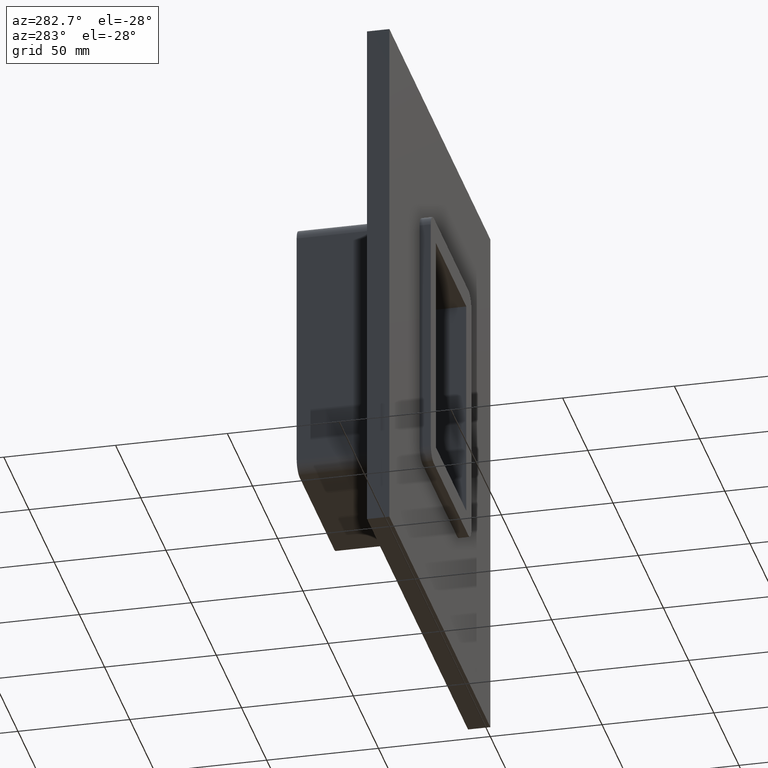
[diagram: clean part render]
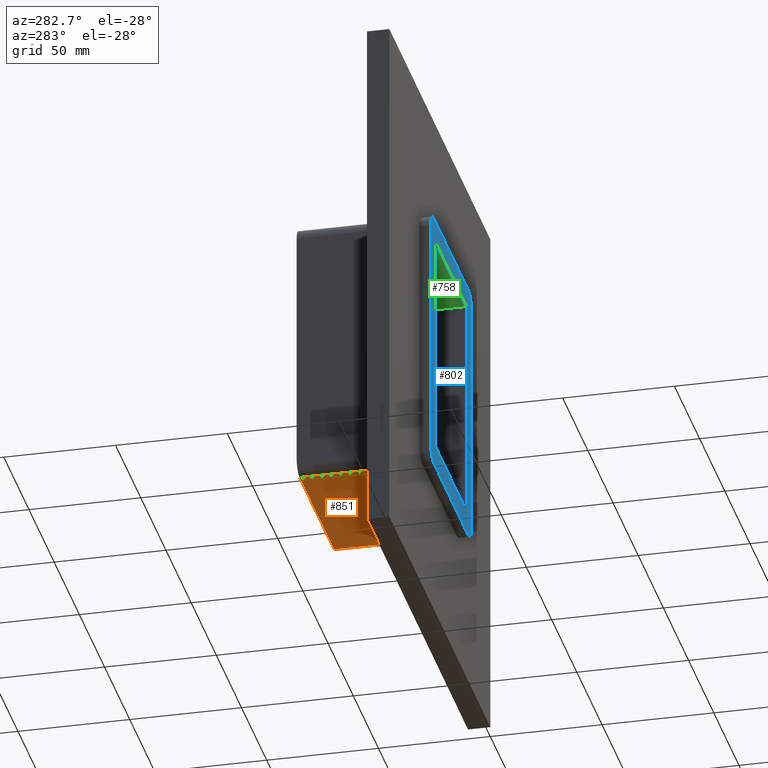
[diagram: same view with three faces highlighted in distinct colors, each labeled with its STEP entity id]
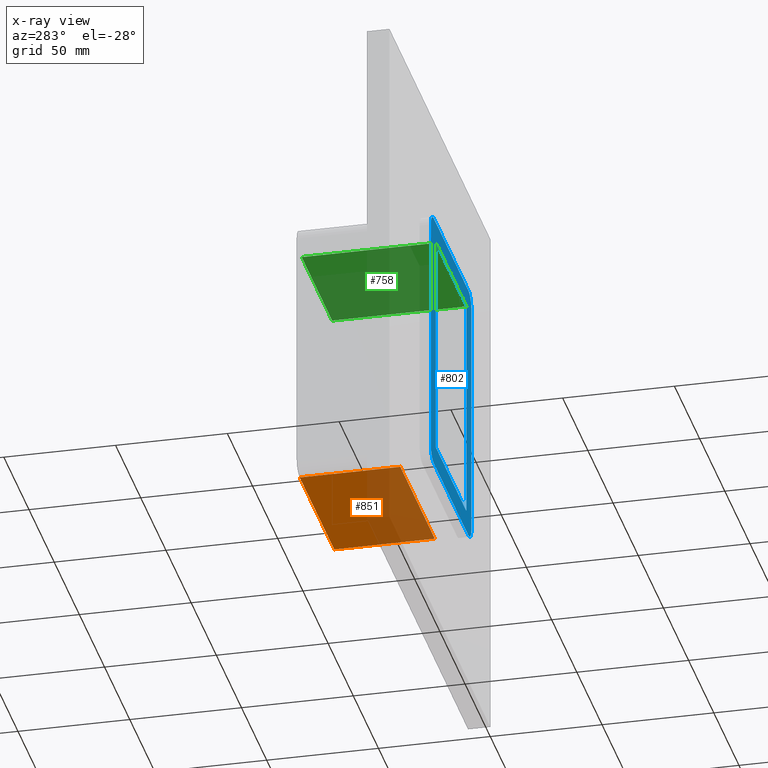
[diagram: x-ray of the same camera — body ghosted, the three highlighted faces saturated]
A machine part, auxiliary view with three faces highlighted in distinct colors.
The next image is the same camera in x-ray (body ghosted, the three faces saturated) — at least one of them is partly hidden behind the body in this view.
Their STEP definitions:

[orange] entity #851 — the highlighted planar face has unit normal (0, 0, -1).
#143=CARTESIAN_POINT('',(-34.250000000000028,10.0,-60.500000000000043));
#144=VERTEX_POINT('',#143);
#152=CARTESIAN_POINT('',(34.250000000000007,10.0,-60.500000000000043));
#153=VERTEX_POINT('',#152);
#154=CARTESIAN_POINT('',(34.250000000000007,10.0,-60.500000000000043));
#155=DIRECTION('',(-1.0,0.0,0.0));
#156=VECTOR('',#155,68.500000000000028);
#157=LINE('',#154,#156);
#158=EDGE_CURVE('',#153,#144,#157,.T.);
#442=CARTESIAN_POINT('',(-34.250000000000028,55.0,-60.500000000000043));
#443=VERTEX_POINT('',#442);
#451=CARTESIAN_POINT('',(-34.250000000000028,10.0,-60.500000000000043));
#452=DIRECTION('',(0.0,1.0,0.0));
#453=VECTOR('',#452,45.0);
#454=LINE('',#451,#453);
#455=EDGE_CURVE('',#144,#443,#454,.T.);
#828=CARTESIAN_POINT('',(34.250000000000007,0.0,-60.500000000000043));
#829=DIRECTION('',(0.0,0.0,-1.0));
#830=DIRECTION('',(-1.0,0.0,0.0));
#831=AXIS2_PLACEMENT_3D('',#828,#829,#830);
#832=PLANE('',#831);
#833=ORIENTED_EDGE('',*,*,#158,.T.);
#834=ORIENTED_EDGE('',*,*,#455,.T.);
#835=CARTESIAN_POINT('',(34.250000000000007,55.0,-60.500000000000043));
#836=VERTEX_POINT('',#835);
#837=CARTESIAN_POINT('',(34.250000000000007,55.0,-60.500000000000043));
#838=DIRECTION('',(-1.0,0.0,0.0));
#839=VECTOR('',#838,68.500000000000028);
#840=LINE('',#837,#839);
#841=EDGE_CURVE('',#836,#443,#840,.T.);
#842=ORIENTED_EDGE('',*,*,#841,.F.);
#843=CARTESIAN_POINT('',(34.250000000000007,10.0,-60.500000000000043));
#844=DIRECTION('',(0.0,1.0,0.0));
#845=VECTOR('',#844,45.0);
#846=LINE('',#843,#845);
#847=EDGE_CURVE('',#153,#836,#846,.T.);
#848=ORIENTED_EDGE('',*,*,#847,.F.);
#849=EDGE_LOOP('',(#833,#834,#842,#848));
#850=FACE_OUTER_BOUND('',#849,.T.);
#851=ADVANCED_FACE('',(#850),#832,.T.);

[blue] entity #802 — the highlighted planar face has unit normal (0, 1, 0).
#361=CARTESIAN_POINT('',(-30.250000000000004,-5.0,50.500000000000043));
#362=VERTEX_POINT('',#361);
#371=CARTESIAN_POINT('',(-30.250000000000004,-5.0,-50.500000000000007));
#372=VERTEX_POINT('',#371);
#373=CARTESIAN_POINT('',(-30.250000000000004,-5.0,-50.500000000000007));
#374=DIRECTION('',(0.0,0.0,1.0));
#375=VECTOR('',#374,101.00000000000006);
#376=LINE('',#373,#375);
#377=EDGE_CURVE('',#372,#362,#376,.T.);
#402=CARTESIAN_POINT('',(-34.250000000000028,-5.0,-60.500000000000043));
#403=VERTEX_POINT('',#402);
#410=CARTESIAN_POINT('',(-40.249999999999986,-5.0,-54.500000000000028));
#411=VERTEX_POINT('',#410);
#412=CARTESIAN_POINT('',(-34.250000000000007,-5.0,-54.500000000000028));
#413=DIRECTION('',(0.0,-1.0,0.0));
#414=DIRECTION('',(0.0,0.0,-1.0));
#415=AXIS2_PLACEMENT_3D('',#412,#413,#414);
#416=CIRCLE('',#415,6.000000000000014);
#417=EDGE_CURVE('',#411,#403,#416,.T.);
#467=CARTESIAN_POINT('',(-40.249999999999986,-5.0,54.500000000000028));
#468=VERTEX_POINT('',#467);
#469=CARTESIAN_POINT('',(-40.249999999999986,-5.0,54.500000000000028));
#470=DIRECTION('',(0.0,0.0,-1.0));
#471=VECTOR('',#470,109.00000000000006);
#472=LINE('',#469,#471);
#473=EDGE_CURVE('',#468,#411,#472,.T.);
#514=CARTESIAN_POINT('',(34.250000000000007,-5.0,-60.500000000000043));
#515=VERTEX_POINT('',#514);
#522=CARTESIAN_POINT('',(-34.250000000000021,-5.0,-60.500000000000043));
#523=DIRECTION('',(1.0,0.0,0.0));
#524=VECTOR('',#523,68.500000000000028);
#525=LINE('',#522,#524);
#526=EDGE_CURVE('',#403,#515,#525,.T.);
#539=CARTESIAN_POINT('',(-34.250000000000028,-5.0,60.500000000000043));
#540=VERTEX_POINT('',#539);
#541=CARTESIAN_POINT('',(-34.250000000000007,-5.0,54.500000000000028));
#542=DIRECTION('',(0.0,-1.0,0.0));
#543=DIRECTION('',(-1.0,0.0,0.0));
#544=AXIS2_PLACEMENT_3D('',#541,#542,#543);
#545=CIRCLE('',#544,6.000000000000014);
#546=EDGE_CURVE('',#540,#468,#545,.T.);
#588=CARTESIAN_POINT('',(40.249999999999986,-5.0,-54.500000000000028));
#589=VERTEX_POINT('',#588);
#596=CARTESIAN_POINT('',(34.250000000000007,-5.0,-54.500000000000028));
#597=DIRECTION('',(0.0,-1.0,0.0));
#598=DIRECTION('',(1.0,0.0,0.0));
#599=AXIS2_PLACEMENT_3D('',#596,#597,#598);
#600=CIRCLE('',#599,6.000000000000014);
#601=EDGE_CURVE('',#515,#589,#600,.T.);
#614=CARTESIAN_POINT('',(34.250000000000028,-5.0,60.500000000000043));
#615=VERTEX_POINT('',#614);
#616=CARTESIAN_POINT('',(34.250000000000028,-5.0,60.500000000000043));
#617=DIRECTION('',(-1.0,0.0,0.0));
#618=VECTOR('',#617,68.500000000000057);
#619=LINE('',#616,#618);
#620=EDGE_CURVE('',#615,#540,#619,.T.);
#661=CARTESIAN_POINT('',(40.249999999999986,-5.0,54.500000000000028));
#662=VERTEX_POINT('',#661);
#669=CARTESIAN_POINT('',(40.249999999999986,-5.0,-54.500000000000028));
#670=DIRECTION('',(0.0,0.0,1.0));
#671=VECTOR('',#670,109.00000000000006);
#672=LINE('',#669,#671);
#673=EDGE_CURVE('',#589,#662,#672,.T.);
#686=CARTESIAN_POINT('',(34.250000000000007,-5.0,54.500000000000028));
#687=DIRECTION('',(0.0,-1.0,0.0));
#688=DIRECTION('',(0.0,0.0,1.0));
#689=AXIS2_PLACEMENT_3D('',#686,#687,#688);
#690=CIRCLE('',#689,6.000000000000014);
#691=EDGE_CURVE('',#662,#615,#690,.T.);
#702=CARTESIAN_POINT('',(30.250000000000021,-5.0,50.500000000000043));
#703=VERTEX_POINT('',#702);
#720=CARTESIAN_POINT('',(30.250000000000021,-5.0,-50.500000000000007));
#721=VERTEX_POINT('',#720);
#728=CARTESIAN_POINT('',(30.250000000000021,-5.0,50.500000000000043));
#729=DIRECTION('',(0.0,0.0,-1.0));
#730=VECTOR('',#729,101.00000000000006);
#731=LINE('',#728,#730);
#732=EDGE_CURVE('',#703,#721,#731,.T.);
#750=CARTESIAN_POINT('',(-30.250000000000004,-5.0,50.500000000000043));
#751=DIRECTION('',(1.0,0.0,0.0));
#752=VECTOR('',#751,60.500000000000028);
#753=LINE('',#750,#752);
#754=EDGE_CURVE('',#362,#703,#753,.T.);
#765=CARTESIAN_POINT('',(30.250000000000021,-5.0,-50.500000000000007));
#766=DIRECTION('',(-1.0,0.0,0.0));
#767=VECTOR('',#766,60.500000000000028);
#768=LINE('',#765,#767);
#769=EDGE_CURVE('',#721,#372,#768,.T.);
#781=CARTESIAN_POINT('',(0.0,-5.0,2.780813E-015));
#782=DIRECTION('',(0.0,1.0,0.0));
#783=DIRECTION('',(0.0,0.0,1.0));
#784=AXIS2_PLACEMENT_3D('',#781,#782,#783);
#785=PLANE('',#784);
#786=ORIENTED_EDGE('',*,*,#673,.T.);
#787=ORIENTED_EDGE('',*,*,#691,.T.);
#788=ORIENTED_EDGE('',*,*,#620,.T.);
#789=ORIENTED_EDGE('',*,*,#546,.T.);
#790=ORIENTED_EDGE('',*,*,#473,.T.);
#791=ORIENTED_EDGE('',*,*,#417,.T.);
#792=ORIENTED_EDGE('',*,*,#526,.T.);
#793=ORIENTED_EDGE('',*,*,#601,.T.);
#794=EDGE_LOOP('',(#786,#787,#788,#789,#790,#791,#792,#793));
#795=FACE_OUTER_BOUND('',#794,.T.);
#796=ORIENTED_EDGE('',*,*,#732,.T.);
#797=ORIENTED_EDGE('',*,*,#769,.T.);
#798=ORIENTED_EDGE('',*,*,#377,.T.);
#799=ORIENTED_EDGE('',*,*,#754,.T.);
#800=EDGE_LOOP('',(#796,#797,#798,#799));
#801=FACE_BOUND('',#800,.T.);
#802=ADVANCED_FACE('',(#795,#801),#785,.F.);

[green] entity #758 — the highlighted planar face has unit normal (0, 0, 1).
#361=CARTESIAN_POINT('',(-30.250000000000004,-5.0,50.500000000000043));
#362=VERTEX_POINT('',#361);
#363=CARTESIAN_POINT('',(-30.250000000000004,55.0,50.500000000000043));
#364=VERTEX_POINT('',#363);
#365=CARTESIAN_POINT('',(-30.250000000000004,-5.0,50.500000000000043));
#366=DIRECTION('',(0.0,1.0,0.0));
#367=VECTOR('',#366,60.0);
#368=LINE('',#365,#367);
#369=EDGE_CURVE('',#362,#364,#368,.T.);
#702=CARTESIAN_POINT('',(30.250000000000021,-5.0,50.500000000000043));
#703=VERTEX_POINT('',#702);
#704=CARTESIAN_POINT('',(30.250000000000021,55.0,50.500000000000043));
#705=VERTEX_POINT('',#704);
#706=CARTESIAN_POINT('',(30.250000000000021,-5.0,50.500000000000043));
#707=DIRECTION('',(0.0,1.0,0.0));
#708=VECTOR('',#707,60.0);
#709=LINE('',#706,#708);
#710=EDGE_CURVE('',#703,#705,#709,.T.);
#737=CARTESIAN_POINT('',(-30.250000000000004,0.0,50.500000000000043));
#738=DIRECTION('',(0.0,0.0,1.0));
#739=DIRECTION('',(1.0,0.0,0.0));
#740=AXIS2_PLACEMENT_3D('',#737,#738,#739);
#741=PLANE('',#740);
#742=ORIENTED_EDGE('',*,*,#369,.T.);
#743=CARTESIAN_POINT('',(30.250000000000021,55.0,50.500000000000043));
#744=DIRECTION('',(-1.0,0.0,0.0));
#745=VECTOR('',#744,60.500000000000028);
#746=LINE('',#743,#745);
#747=EDGE_CURVE('',#705,#364,#746,.T.);
#748=ORIENTED_EDGE('',*,*,#747,.F.);
#749=ORIENTED_EDGE('',*,*,#710,.F.);
#750=CARTESIAN_POINT('',(-30.250000000000004,-5.0,50.500000000000043));
#751=DIRECTION('',(1.0,0.0,0.0));
#752=VECTOR('',#751,60.500000000000028);
#753=LINE('',#750,#752);
#754=EDGE_CURVE('',#362,#703,#753,.T.);
#755=ORIENTED_EDGE('',*,*,#754,.F.);
#756=EDGE_LOOP('',(#742,#748,#749,#755));
#757=FACE_OUTER_BOUND('',#756,.T.);
#758=ADVANCED_FACE('',(#757),#741,.F.);